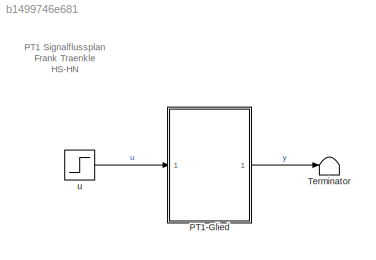
MODEL slx_b1499746e681
KIND model
CONFIG AbsTol = auto
CONFIG EnableMultiTasking = on
CONFIG FixedStep = P_dt
CONFIG InitFcn = pt1_data;
CONFIG MaxStep = auto
CONFIG MinStep = auto
CONFIG RelTol = 1e-3
CONFIG SampleTimeConstraint = Unconstrained
CONFIG Solver = ode4
CONFIG SolverName = ode4
CONFIG StartTime = 0.0
CONFIG StopTime = 1e-3
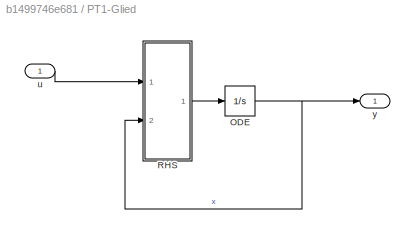
BLOCK [SubSystem] PT1-Glied
  Ports = [1, 1]
  RequestExecContextInheritance = off
BLOCK [Integrator] PT1-Glied/ODE
  InitialCondition = P_x0
  Ports = [1, 1]
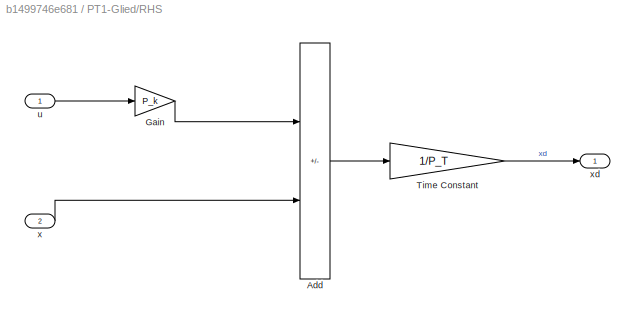
BLOCK [SubSystem] PT1-Glied/RHS
  Ports = [2, 1]
  RequestExecContextInheritance = off
BLOCK [Sum] PT1-Glied/RHS/Add
  IconShape = rectangular
  Inputs = +-
  Ports = [2, 1]
BLOCK [Gain] PT1-Glied/RHS/Gain
  Gain = P_k
BLOCK [Gain] PT1-Glied/RHS/Time Constant
  Gain = 1/P_T
BLOCK [Inport] PT1-Glied/RHS/u
BLOCK [Inport] PT1-Glied/RHS/x
  Port = 2
BLOCK [Outport] PT1-Glied/RHS/xd
BLOCK [Inport] PT1-Glied/u
BLOCK [Outport] PT1-Glied/y
BLOCK [Terminator] Terminator
BLOCK [Step] u
  After = 12
  SampleTime = 0
  Time = 0
ANNOTATION (root): PT1 Signalflussplan Frank Traenkle HS-HN
NET PT1-Glied/ODE:1 -> PT1-Glied/RHS:2, PT1-Glied/y:1
LINE PT1-Glied/RHS/Add:1 -> PT1-Glied/RHS/Time Constant:1
LINE PT1-Glied/RHS/Gain:1 -> PT1-Glied/RHS/Add:1
LINE PT1-Glied/RHS/Time Constant:1 -> PT1-Glied/RHS/xd:1
LINE PT1-Glied/RHS/u:1 -> PT1-Glied/RHS/Gain:1
LINE PT1-Glied/RHS/x:1 -> PT1-Glied/RHS/Add:2
LINE PT1-Glied/RHS:1 -> PT1-Glied/ODE:1
LINE PT1-Glied/u:1 -> PT1-Glied/RHS:1
LINE PT1-Glied:1 -> Terminator:1
LINE u:1 -> PT1-Glied:1
note: NET lines group one-source signal fan-out (src -> all destinations, sorted); 1:1 wires keep LINE
